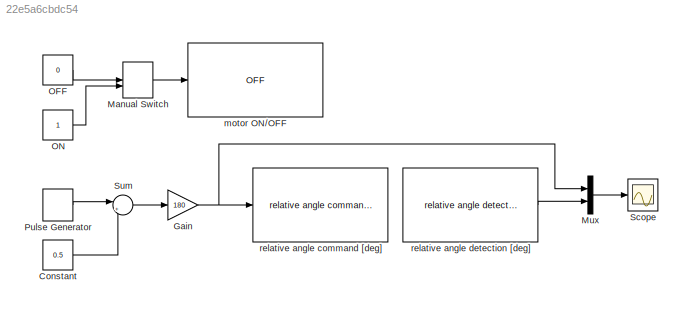
MODEL slx_22e5a6cbdc54
KIND model
CONFIG AbsTol = auto
CONFIG EnableMultiTasking = on
CONFIG FixedStep = 0.005
CONFIG MaxStep = auto
CONFIG MinStep = auto
CONFIG RelTol = 1e-3
CONFIG SampleTimeConstraint = Unconstrained
CONFIG SolverName = ode1
CONFIG StartTime = 0.0
CONFIG StopTime = inf
BLOCK [Constant] Constant
  Value = 0.5
BLOCK [Gain] Gain
  Gain = 180
BLOCK [ManualSwitch] Manual Switch
BLOCK [Mux] Mux
  DisplayOption = bar
  Inputs = 2
BLOCK [Constant] OFF
  Value = 0
BLOCK [Constant] ON
BLOCK [DiscretePulseGenerator] Pulse Generator
  NameLocation = top
  Period = 4
  PhaseDelay = 1
  PulseType = Time based
  PulseWidth = 50
BLOCK [Scope] Scope
  ActiveDisplayYMaximum = 150
  ActiveDisplayYMinimum = -150
  Floating = off
  GraphicalSettings = {"Style":{"BackgroundColor":[0.12941176470588237,0.12941176470588237,0.12941176470588237],"AxesColor":[0.07058823529411765,0.07058823529411765,0.07058823529411765],"LabelsColor":[0.8509803921568627,0.8509803921568627,0.8509803921568627],"PreserveColors":false,"Visible":[true,true],"LineStyle":["-","-"],"LineWidth":[1.5,1.5],"BarWidth":[0.9,0.9],"LineColor":[[1,0.9098039215686274,0.3921568627450980...<+2153ch>
  MultipleDisplayCache = [{"MaxYLimMag":10,"MaxYLimReal":150,"MinYLimMag":0,"MinYLimReal":-150,"PlotAsMagnitudePhase":false,"ShowGrid":true,"ShowLegend":false,"Title":"%<SignalLabel>","YLabel":""}]
  NumInputPorts = 1
  ScopeFrameLocation = window
  TimeSpan = 4
  Visible = on
  WasSavedAsWebScope = on
  WindowPosition = [1146.000000,195.000000,560.000000,723.000000,]
BLOCK [Sum] Sum
  Inputs = |+-
BLOCK [Reference] motor ON//OFF  REF=roller485lib/motor ON//OFF  (lib defined in slx_9f537789314b)
  SourceBlock = roller485lib/motor ON//OFF
  SourceProductName = Roller485 Library
BLOCK [Reference] relative angle command [deg]  REF=roller485lib/I2C Write/relative angle command [deg]  (lib defined in slx_9f537789314b)
  SourceBlock = roller485lib/I2C Write/relative angle command [deg]
  SourceProductName = Roller485 Library
  SourceType = relative angle command [deg]
BLOCK [Reference] relative angle detection [deg]  REF=roller485lib/I2C Read/relative angle detection [deg]  (lib defined in slx_9f537789314b)
  SourceBlock = roller485lib/I2C Read/relative angle detection [deg]
  SourceProductName = Roller485 Library
LINE Constant:1 -> Sum:2
NET Gain:1 -> Mux:1, relative angle command [deg]:1
LINE Manual Switch:1 -> motor ON//OFF:1
LINE Mux:1 -> Scope:1
LINE OFF:1 -> Manual Switch:1
LINE ON:1 -> Manual Switch:2
LINE Pulse Generator:1 -> Sum:1
LINE Sum:1 -> Gain:1
LINE relative angle detection [deg]:1 -> Mux:2
note: NET lines group one-source signal fan-out (src -> all destinations, sorted); 1:1 wires keep LINE
